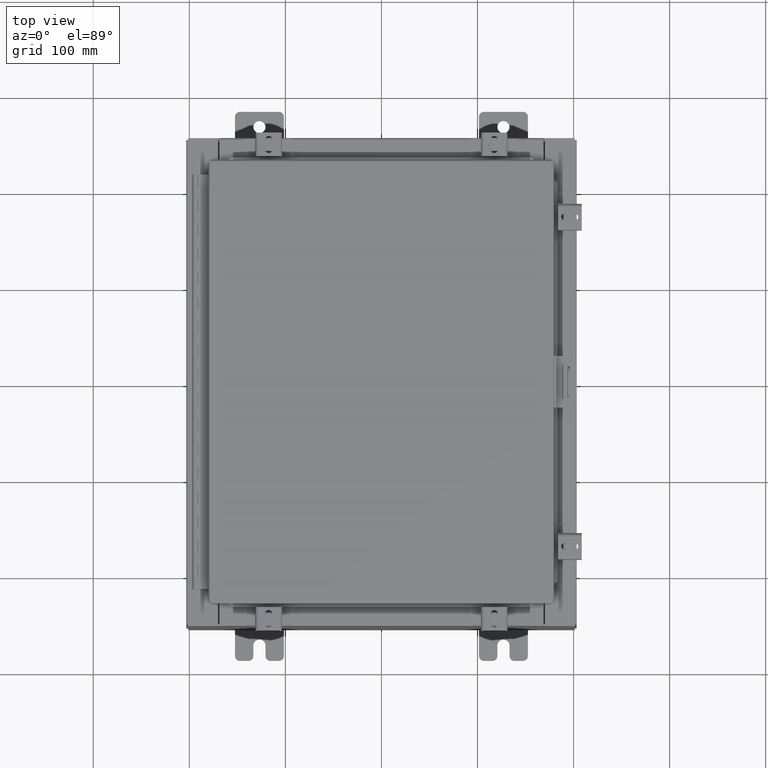
[diagram: clean part render]
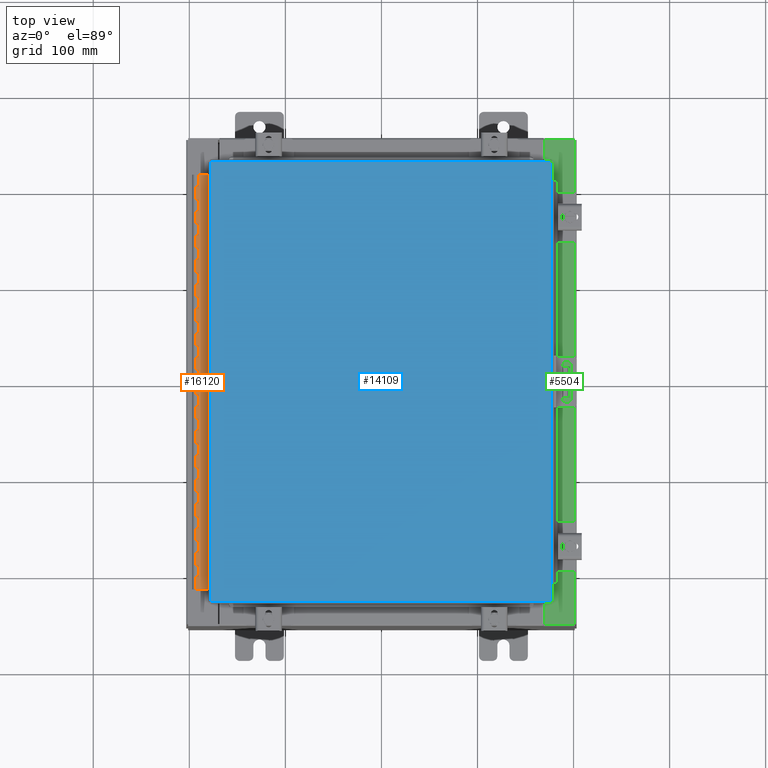
[diagram: same view with three faces highlighted in distinct colors, each labeled with its STEP entity id]
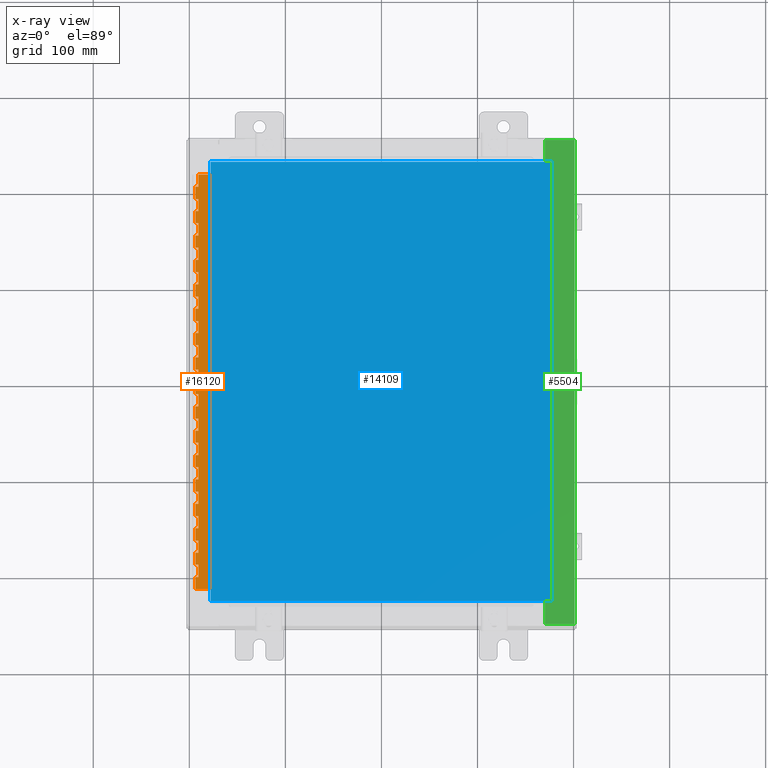
[diagram: x-ray of the same camera — body ghosted, the three highlighted faces saturated]
A machine part, top view with three faces highlighted in distinct colors.
The next image is the same camera in x-ray (body ghosted, the three faces saturated) — at least one of them is partly hidden behind the body in this view.
Their STEP definitions:

[orange] entity #16120 — the highlighted planar face has unit normal (-0, -0, 1).
#17 = CARTESIAN_POINT ( 'NONE',  ( -0.6869999999999978300, 0.6754999999999996600, -7.000000000000000000 ) ) ;
#80 = CARTESIAN_POINT ( 'NONE',  ( -0.6869999999999978300, 0.6754999999999996600, -1.000000000000000000 ) ) ;
#110 = LINE ( 'NONE', #10986, #10803 ) ;
#171 = VECTOR ( 'NONE', #2619, 39.37007874015748100 ) ;
#223 = EDGE_CURVE ( 'NONE', #17770, #22637, #7038, .T. ) ;
#247 = DIRECTION ( 'NONE',  ( -3.389037039080723100E-015, -1.000000000000000000, 0.0000000000000000000 ) ) ;
#256 = LINE ( 'NONE', #8292, #18395 ) ;
#266 = VERTEX_POINT ( 'NONE', #6761 ) ;
#322 = VERTEX_POINT ( 'NONE', #80 ) ;
#326 = CARTESIAN_POINT ( 'NONE',  ( -0.6869999999999998300, 0.07549999999999991400, 0.0000000000000000000 ) ) ;
#331 = DIRECTION ( 'NONE',  ( 0.0000000000000000000, 0.0000000000000000000, 1.000000000000000000 ) ) ;
#352 = VERTEX_POINT ( 'NONE', #2568 ) ;
#487 = DIRECTION ( 'NONE',  ( 0.0000000000000000000, 0.0000000000000000000, 1.000000000000000000 ) ) ;
#522 = CARTESIAN_POINT ( 'NONE',  ( -0.6869999999999982800, 0.5504999999999997700, -10.50000000000000000 ) ) ;
#536 = VECTOR ( 'NONE', #26798, 39.37007874015748100 ) ;
#571 = LINE ( 'NONE', #23505, #5908 ) ;
#589 = DIRECTION ( 'NONE',  ( -3.389037039080723100E-015, -1.000000000000000000, 0.0000000000000000000 ) ) ;
#846 = VERTEX_POINT ( 'NONE', #15884 ) ;
#887 = VECTOR ( 'NONE', #27581, 39.37007874015748100 ) ;
#914 = LINE ( 'NONE', #24167, #6983 ) ;
#973 = VECTOR ( 'NONE', #4366, 39.37007874015748100 ) ;
#985 = VERTEX_POINT ( 'NONE', #23139 ) ;
#1073 = LINE ( 'NONE', #4850, #18511 ) ;
#1079 = CARTESIAN_POINT ( 'NONE',  ( -0.6869999999999973900, 0.8004999999999995500, -11.00000000000000000 ) ) ;
#1138 = CARTESIAN_POINT ( 'NONE',  ( -0.6869999999999982800, 0.5504999999999997700, -16.00000000000000000 ) ) ;
#1148 = CARTESIAN_POINT ( 'NONE',  ( -0.6869999999999982800, 0.5504999999999997700, -14.49999999999999800 ) ) ;
#1169 = ORIENTED_EDGE ( 'NONE', *, *, #14218, .T. ) ;
#1210 = CARTESIAN_POINT ( 'NONE',  ( -0.6869999999999982800, 0.5504999999999997700, -8.500000000000000000 ) ) ;
#1231 = CARTESIAN_POINT ( 'NONE',  ( -0.6869999999999982800, 0.5504999999999997700, -8.500000000000000000 ) ) ;
#1256 = VECTOR ( 'NONE', #6228, 39.37007874015748100 ) ;
#1289 = CARTESIAN_POINT ( 'NONE',  ( -0.6869999999999973900, 0.8004999999999995500, -11.50000000000000000 ) ) ;
#1292 = ORIENTED_EDGE ( 'NONE', *, *, #7272, .F. ) ;
#1295 = CARTESIAN_POINT ( 'NONE',  ( -0.6869999999999973900, 0.8004999999999995500, -2.500000000000000000 ) ) ;
#1490 = LINE ( 'NONE', #11937, #24985 ) ;
#1515 = EDGE_CURVE ( 'NONE', #10337, #6301, #7328, .T. ) ;
#1590 = CARTESIAN_POINT ( 'NONE',  ( -0.6869999999999982800, 0.5504999999999997700, -8.000000000000000000 ) ) ;
#1693 = CARTESIAN_POINT ( 'NONE',  ( -0.6869999999999982800, 0.5504999999999997700, -3.500000000000000000 ) ) ;
#1696 = CARTESIAN_POINT ( 'NONE',  ( -0.6869999999999978300, 0.6754999999999996600, -14.99999999999999800 ) ) ;
#1751 = ORIENTED_EDGE ( 'NONE', *, *, #12906, .F. ) ;
#1775 = EDGE_CURVE ( 'NONE', #13783, #15604, #19044, .T. ) ;
#1781 = VERTEX_POINT ( 'NONE', #326 ) ;
#1784 = EDGE_CURVE ( 'NONE', #846, #16103, #12280, .T. ) ;
#1789 = VECTOR ( 'NONE', #25140, 39.37007874015748100 ) ;
#1903 = CARTESIAN_POINT ( 'NONE',  ( -0.6869999999999973900, 0.8004999999999995500, -7.499999999999999100 ) ) ;
#1945 = DIRECTION ( 'NONE',  ( 0.0000000000000000000, -0.0000000000000000000, -1.000000000000000000 ) ) ;
#1966 = DIRECTION ( 'NONE',  ( 3.389037039080723100E-015, 1.000000000000000000, -0.0000000000000000000 ) ) ;
#2021 = ORIENTED_EDGE ( 'NONE', *, *, #23915, .F. ) ;
#2032 = CARTESIAN_POINT ( 'NONE',  ( -0.6869999999999978300, 0.6754999999999996600, -3.500000000000000000 ) ) ;
#2041 = CARTESIAN_POINT ( 'NONE',  ( -0.6869999999999982800, 0.5504999999999997700, -2.999999999999999600 ) ) ;
#2094 = VERTEX_POINT ( 'NONE', #24160 ) ;
#2125 = LINE ( 'NONE', #1295, #25614 ) ;
#2176 = VECTOR ( 'NONE', #4660, 39.37007874015748100 ) ;
#2288 = DIRECTION ( 'NONE',  ( -3.389037039080723100E-015, -1.000000000000000000, 0.0000000000000000000 ) ) ;
#2477 = CARTESIAN_POINT ( 'NONE',  ( -0.6869999999999982800, 0.5504999999999997700, -11.99999999999999800 ) ) ;
#2482 = EDGE_CURVE ( 'NONE', #28964, #27370, #14035, .T. ) ;
#2490 = CARTESIAN_POINT ( 'NONE',  ( -0.6869999999999978300, 0.6754999999999996600, -10.50000000000000000 ) ) ;
#2568 = CARTESIAN_POINT ( 'NONE',  ( -0.6869999999999982800, 0.5504999999999997700, -0.5000000000000000000 ) ) ;
#2612 = EDGE_CURVE ( 'NONE', #17644, #27948, #16505, .T. ) ;
#2614 = ORIENTED_EDGE ( 'NONE', *, *, #17373, .T. ) ;
#2619 = DIRECTION ( 'NONE',  ( 3.369016658928398200E-015, 1.000000000000000000, 0.0000000000000000000 ) ) ;
#2705 = LINE ( 'NONE', #28507, #12666 ) ;
#2739 = EDGE_CURVE ( 'NONE', #16152, #266, #14065, .T. ) ;
#2814 = DIRECTION ( 'NONE',  ( 0.0000000000000000000, -0.0000000000000000000, -1.000000000000000000 ) ) ;
#2887 = VECTOR ( 'NONE', #10819, 39.37007874015748100 ) ;
#2913 = CARTESIAN_POINT ( 'NONE',  ( -0.6869999999999973900, 0.8004999999999995500, -2.999999999999999600 ) ) ;
#2935 = LINE ( 'NONE', #20892, #25695 ) ;
#2952 = DIRECTION ( 'NONE',  ( 0.0000000000000000000, 0.0000000000000000000, 1.000000000000000000 ) ) ;
#3212 = CARTESIAN_POINT ( 'NONE',  ( -0.6869999999999978300, 0.6754999999999996600, -14.49999999999999800 ) ) ;
#3347 = EDGE_CURVE ( 'NONE', #20771, #21967, #21849, .T. ) ;
#3408 = ORIENTED_EDGE ( 'NONE', *, *, #2612, .T. ) ;
#3441 = CARTESIAN_POINT ( 'NONE',  ( -0.6869999999999982800, 0.5504999999999997700, -14.99999999999999800 ) ) ;
#3503 = CARTESIAN_POINT ( 'NONE',  ( -0.6869999999999982800, 0.5504999999999997700, -13.50000000000000000 ) ) ;
#3504 = DIRECTION ( 'NONE',  ( -3.389037039080723100E-015, -1.000000000000000000, 0.0000000000000000000 ) ) ;
#3768 = VECTOR ( 'NONE', #24550, 39.37007874015748100 ) ;
#3817 = VECTOR ( 'NONE', #7309, 39.37007874015748100 ) ;
#3869 = DIRECTION ( 'NONE',  ( 3.389037039080723100E-015, 1.000000000000000000, -0.0000000000000000000 ) ) ;
#3928 = VECTOR ( 'NONE', #10734, 39.37007874015748100 ) ;
#4003 = ORIENTED_EDGE ( 'NONE', *, *, #18703, .F. ) ;
#4007 = EDGE_CURVE ( 'NONE', #16152, #5953, #6147, .T. ) ;
#4082 = CARTESIAN_POINT ( 'NONE',  ( -0.6869999999999982800, 0.5504999999999997700, -5.000000000000000000 ) ) ;
#4148 = VECTOR ( 'NONE', #331, 39.37007874015748100 ) ;
#4241 = CARTESIAN_POINT ( 'NONE',  ( -0.6869999999999982800, 0.5504999999999997700, -11.50000000000000000 ) ) ;
#4328 = LINE ( 'NONE', #1903, #8970 ) ;
#4360 = ORIENTED_EDGE ( 'NONE', *, *, #24891, .T. ) ;
#4366 = DIRECTION ( 'NONE',  ( 3.389037039080723100E-015, 1.000000000000000000, -0.0000000000000000000 ) ) ;
#4392 = ORIENTED_EDGE ( 'NONE', *, *, #20067, .F. ) ;
#4481 = ORIENTED_EDGE ( 'NONE', *, *, #21491, .F. ) ;
#4504 = VECTOR ( 'NONE', #6855, 39.37007874015748100 ) ;
#4506 = CARTESIAN_POINT ( 'NONE',  ( -0.6869999999999982800, 0.5504999999999997700, -6.000000000000000900 ) ) ;
#4547 = ORIENTED_EDGE ( 'NONE', *, *, #13605, .F. ) ;
#4586 = DIRECTION ( 'NONE',  ( 0.0000000000000000000, -0.0000000000000000000, -1.000000000000000000 ) ) ;
#4626 = CARTESIAN_POINT ( 'NONE',  ( -0.6869999999999978300, 0.6754999999999996600, -17.00000000000000000 ) ) ;
#4631 = ORIENTED_EDGE ( 'NONE', *, *, #21997, .F. ) ;
#4644 = LINE ( 'NONE', #8452, #3928 ) ;
#4656 = CARTESIAN_POINT ( 'NONE',  ( -0.6869999999999973900, 0.8004999999999995500, -14.99999999999999800 ) ) ;
#4660 = DIRECTION ( 'NONE',  ( 0.0000000000000000000, -0.0000000000000000000, -1.000000000000000000 ) ) ;
#4728 = VERTEX_POINT ( 'NONE', #3503 ) ;
#4751 = VERTEX_POINT ( 'NONE', #19521 ) ;
#4850 = CARTESIAN_POINT ( 'NONE',  ( -0.6869999999999973900, 0.8004999999999995500, -11.99999999999999800 ) ) ;
#4909 = EDGE_CURVE ( 'NONE', #14573, #7971, #4328, .T. ) ;
#5118 = ORIENTED_EDGE ( 'NONE', *, *, #21658, .F. ) ;
#5229 = CARTESIAN_POINT ( 'NONE',  ( -0.6869999999999978300, 0.6754999999999996600, -17.00000000000000000 ) ) ;
#5366 = LINE ( 'NONE', #18098, #16767 ) ;
#5386 = LINE ( 'NONE', #1231, #10036 ) ;
#5490 = CARTESIAN_POINT ( 'NONE',  ( -0.6869999999999973900, 0.8004999999999995500, -9.500000000000000000 ) ) ;
#5650 = ORIENTED_EDGE ( 'NONE', *, *, #29156, .F. ) ;
#5653 = EDGE_CURVE ( 'NONE', #15190, #8715, #14621, .T. ) ;
#5659 = VECTOR ( 'NONE', #3504, 39.37007874015748100 ) ;
#5667 = VERTEX_POINT ( 'NONE', #27542 ) ;
#5684 = ORIENTED_EDGE ( 'NONE', *, *, #14749, .F. ) ;
#5770 = CARTESIAN_POINT ( 'NONE',  ( -0.6869999999999973900, 0.8004999999999995500, -14.00000000000000000 ) ) ;
#5794 = ORIENTED_EDGE ( 'NONE', *, *, #27712, .T. ) ;
#5875 = DIRECTION ( 'NONE',  ( -3.389037039080723100E-015, -1.000000000000000000, 0.0000000000000000000 ) ) ;
#5908 = VECTOR ( 'NONE', #9893, 39.37007874015748100 ) ;
#5953 = VERTEX_POINT ( 'NONE', #10329 ) ;
#6022 = LINE ( 'NONE', #1289, #6744 ) ;
#6086 = CARTESIAN_POINT ( 'NONE',  ( -0.6869999999999982800, 0.5504999999999997700, -12.49999999999999800 ) ) ;
#6111 = VERTEX_POINT ( 'NONE', #29029 ) ;
#6147 = LINE ( 'NONE', #17237, #12196 ) ;
#6228 = DIRECTION ( 'NONE',  ( 0.0000000000000000000, -0.0000000000000000000, -1.000000000000000000 ) ) ;
#6261 = DIRECTION ( 'NONE',  ( 0.0000000000000000000, -0.0000000000000000000, -1.000000000000000000 ) ) ;
#6292 = LINE ( 'NONE', #25092, #11627 ) ;
#6301 = VERTEX_POINT ( 'NONE', #18242 ) ;
#6398 = LINE ( 'NONE', #4626, #23827 ) ;
#6452 = ORIENTED_EDGE ( 'NONE', *, *, #4909, .F. ) ;
#6471 = EDGE_CURVE ( 'NONE', #20771, #6301, #16041, .T. ) ;
#6595 = ORIENTED_EDGE ( 'NONE', *, *, #8394, .F. ) ;
#6674 = CARTESIAN_POINT ( 'NONE',  ( -0.6869999999999982800, 0.5504999999999997700, -12.99999999999999800 ) ) ;
#6676 = EDGE_CURVE ( 'NONE', #11946, #18956, #5386, .T. ) ;
#6691 = CARTESIAN_POINT ( 'NONE',  ( -0.6869999999999982800, 0.5504999999999997700, -9.500000000000000000 ) ) ;
#6744 = VECTOR ( 'NONE', #17208, 39.37007874015748100 ) ;
#6761 = CARTESIAN_POINT ( 'NONE',  ( -0.6869999999999978300, 0.6754999999999996600, -10.00000000000000000 ) ) ;
#6766 = LINE ( 'NONE', #2913, #18862 ) ;
#6855 = DIRECTION ( 'NONE',  ( 3.389037039080723100E-015, 1.000000000000000000, -0.0000000000000000000 ) ) ;
#6983 = VECTOR ( 'NONE', #12854, 39.37007874015748100 ) ;
#6987 = DIRECTION ( 'NONE',  ( 1.000000000000000000, -3.369016658928398200E-015, 0.0000000000000000000 ) ) ;
#7038 = LINE ( 'NONE', #17979, #973 ) ;
#7221 = CARTESIAN_POINT ( 'NONE',  ( -0.6869999999999978300, 0.6754999999999996600, -4.500000000000000000 ) ) ;
#7230 = EDGE_CURVE ( 'NONE', #18956, #6111, #13912, .T. ) ;
#7272 = EDGE_CURVE ( 'NONE', #26643, #11282, #1073, .T. ) ;
#7309 = DIRECTION ( 'NONE',  ( 3.389037039080723100E-015, 1.000000000000000000, -0.0000000000000000000 ) ) ;
#7320 = DIRECTION ( 'NONE',  ( 0.0000000000000000000, 0.0000000000000000000, 1.000000000000000000 ) ) ;
#7328 = LINE ( 'NONE', #29100, #536 ) ;
#7335 = LINE ( 'NONE', #28911, #1256 ) ;
#7358 = VECTOR ( 'NONE', #2814, 39.37007874015748100 ) ;
#7404 = DIRECTION ( 'NONE',  ( 3.389037039080723100E-015, 1.000000000000000000, -0.0000000000000000000 ) ) ;
#7422 = CARTESIAN_POINT ( 'NONE',  ( -0.6869999999999978300, 0.6754999999999996600, -17.00000000000000000 ) ) ;
#7470 = LINE ( 'NONE', #5770, #24157 ) ;
#7471 = CARTESIAN_POINT ( 'NONE',  ( -0.6869999999999973900, 0.8004999999999995500, -3.500000000000000000 ) ) ;
#7709 = VERTEX_POINT ( 'NONE', #13106 ) ;
#7749 = DIRECTION ( 'NONE',  ( 0.0000000000000000000, 0.0000000000000000000, 1.000000000000000000 ) ) ;
#7846 = EDGE_CURVE ( 'NONE', #11541, #18933, #6398, .T. ) ;
#7949 = EDGE_CURVE ( 'NONE', #25146, #12086, #9618, .T. ) ;
#7971 = VERTEX_POINT ( 'NONE', #11983 ) ;
#7988 = VECTOR ( 'NONE', #14236, 39.37007874015748100 ) ;
#8019 = VECTOR ( 'NONE', #26826, 39.37007874015748100 ) ;
#8075 = VERTEX_POINT ( 'NONE', #3212 ) ;
#8079 = DIRECTION ( 'NONE',  ( 3.389037039080723100E-015, 1.000000000000000000, -0.0000000000000000000 ) ) ;
#8093 = CARTESIAN_POINT ( 'NONE',  ( -0.6869999999999982800, 0.5504999999999997700, -10.00000000000000000 ) ) ;
#8227 = CARTESIAN_POINT ( 'NONE',  ( -0.6869999999999978300, 0.6754999999999996600, -17.00000000000000000 ) ) ;
#8272 = LINE ( 'NONE', #9456, #18925 ) ;
#8292 = CARTESIAN_POINT ( 'NONE',  ( -0.6869999999999982800, 0.5504999999999997700, -7.499999999999999100 ) ) ;
#8308 = ORIENTED_EDGE ( 'NONE', *, *, #5653, .F. ) ;
#8372 = ORIENTED_EDGE ( 'NONE', *, *, #7846, .T. ) ;
#8394 = EDGE_CURVE ( 'NONE', #13635, #24324, #28428, .T. ) ;
#8445 = ORIENTED_EDGE ( 'NONE', *, *, #10985, .F. ) ;
#8452 = CARTESIAN_POINT ( 'NONE',  ( -0.6869999999999978300, 0.6754999999999996600, -17.00000000000000000 ) ) ;
#8511 = ORIENTED_EDGE ( 'NONE', *, *, #19423, .T. ) ;
#8516 = DIRECTION ( 'NONE',  ( 3.389037039080723100E-015, 1.000000000000000000, -0.0000000000000000000 ) ) ;
#8529 = CARTESIAN_POINT ( 'NONE',  ( -0.6869999999999978300, 0.6754999999999996600, -17.00000000000000000 ) ) ;
#8573 = VECTOR ( 'NONE', #13836, 39.37007874015748100 ) ;
#8578 = VECTOR ( 'NONE', #21152, 39.37007874015748100 ) ;
#8712 = ORIENTED_EDGE ( 'NONE', *, *, #1784, .T. ) ;
#8715 = VERTEX_POINT ( 'NONE', #26008 ) ;
#8729 = AXIS2_PLACEMENT_3D ( 'NONE', #20595, #6987, #22890 ) ;
#8880 = ORIENTED_EDGE ( 'NONE', *, *, #16983, .F. ) ;
#8888 = DIRECTION ( 'NONE',  ( 0.0000000000000000000, 0.0000000000000000000, 1.000000000000000000 ) ) ;
#8970 = VECTOR ( 'NONE', #24581, 39.37007874015748100 ) ;
#9140 = LINE ( 'NONE', #17779, #3768 ) ;
#9189 = PLANE ( 'NONE',  #8729 ) ;
#9195 = DIRECTION ( 'NONE',  ( 0.0000000000000000000, -0.0000000000000000000, -1.000000000000000000 ) ) ;
#9226 = EDGE_CURVE ( 'NONE', #22053, #15212, #28027, .T. ) ;
#9399 = EDGE_CURVE ( 'NONE', #7971, #17770, #256, .T. ) ;
#9456 = CARTESIAN_POINT ( 'NONE',  ( -0.6869999999999973900, 0.8004999999999995500, -14.49999999999999800 ) ) ;
#9480 = LINE ( 'NONE', #27355, #26891 ) ;
#9598 = LINE ( 'NONE', #13780, #27001 ) ;
#9618 = LINE ( 'NONE', #7422, #27728 ) ;
#9649 = LINE ( 'NONE', #28382, #15691 ) ;
#9797 = ORIENTED_EDGE ( 'NONE', *, *, #18851, .T. ) ;
#9862 = VECTOR ( 'NONE', #20568, 39.37007874015748100 ) ;
#9893 = DIRECTION ( 'NONE',  ( 0.0000000000000000000, -0.0000000000000000000, -1.000000000000000000 ) ) ;
#10014 = VECTOR ( 'NONE', #247, 39.37007874015748100 ) ;
#10036 = VECTOR ( 'NONE', #14971, 39.37007874015748100 ) ;
#10095 = CARTESIAN_POINT ( 'NONE',  ( -0.6869999999999978300, 0.6754999999999996600, -8.000000000000000000 ) ) ;
#10145 = DIRECTION ( 'NONE',  ( 0.0000000000000000000, 0.0000000000000000000, 1.000000000000000000 ) ) ;
#10329 = CARTESIAN_POINT ( 'NONE',  ( -0.6869999999999982800, 0.5504999999999997700, -10.50000000000000000 ) ) ;
#10337 = VERTEX_POINT ( 'NONE', #13445 ) ;
#10497 = DIRECTION ( 'NONE',  ( 0.0000000000000000000, 0.0000000000000000000, 1.000000000000000000 ) ) ;
#10546 = VECTOR ( 'NONE', #6261, 39.37007874015748100 ) ;
#10600 = CARTESIAN_POINT ( 'NONE',  ( -0.6869999999999973900, 0.8004999999999995500, -1.000000000000000000 ) ) ;
#10717 = CARTESIAN_POINT ( 'NONE',  ( -0.6869999999999978300, 0.6754999999999996600, -12.49999999999999800 ) ) ;
#10734 = DIRECTION ( 'NONE',  ( 0.0000000000000000000, 0.0000000000000000000, 1.000000000000000000 ) ) ;
#10803 = VECTOR ( 'NONE', #13272, 39.37007874015748100 ) ;
#10810 = ORIENTED_EDGE ( 'NONE', *, *, #4007, .F. ) ;
#10819 = DIRECTION ( 'NONE',  ( 0.0000000000000000000, -0.0000000000000000000, -1.000000000000000000 ) ) ;
#10864 = LINE ( 'NONE', #11417, #21543 ) ;
#10961 = ORIENTED_EDGE ( 'NONE', *, *, #26793, .F. ) ;
#10985 = EDGE_CURVE ( 'NONE', #5667, #11946, #10864, .T. ) ;
#10986 = CARTESIAN_POINT ( 'NONE',  ( -0.6869999999999982800, 0.5504999999999997700, -5.500000000000000000 ) ) ;
#10998 = VECTOR ( 'NONE', #27064, 39.37007874015748100 ) ;
#11087 = VECTOR ( 'NONE', #10497, 39.37007874015748100 ) ;
#11131 = CARTESIAN_POINT ( 'NONE',  ( -0.6869999999999982800, 0.5504999999999997700, -1.499999999999999800 ) ) ;
#11154 = CARTESIAN_POINT ( 'NONE',  ( -0.6869999999999978300, 0.6754999999999996600, -2.000000000000000000 ) ) ;
#11282 = VERTEX_POINT ( 'NONE', #21659 ) ;
#11417 = CARTESIAN_POINT ( 'NONE',  ( -0.6869999999999973900, 0.8004999999999995500, -8.500000000000000000 ) ) ;
#11445 = EDGE_CURVE ( 'NONE', #24039, #22903, #22206, .T. ) ;
#11447 = VECTOR ( 'NONE', #2952, 39.37007874015748100 ) ;
#11449 = CARTESIAN_POINT ( 'NONE',  ( -0.6869999999999982800, 0.5504999999999997700, -0.5000000000000000000 ) ) ;
#11452 = CARTESIAN_POINT ( 'NONE',  ( -0.6869999999999982800, 0.5504999999999997700, -17.00000000000000000 ) ) ;
#11458 = DIRECTION ( 'NONE',  ( 0.0000000000000000000, -0.0000000000000000000, -1.000000000000000000 ) ) ;
#11470 = ORIENTED_EDGE ( 'NONE', *, *, #27520, .F. ) ;
#11477 = DIRECTION ( 'NONE',  ( 3.369016658928398200E-015, 1.000000000000000000, 0.0000000000000000000 ) ) ;
#11498 = VERTEX_POINT ( 'NONE', #17747 ) ;
#11504 = ORIENTED_EDGE ( 'NONE', *, *, #14508, .F. ) ;
#11541 = VERTEX_POINT ( 'NONE', #2032 ) ;
#11583 = DIRECTION ( 'NONE',  ( 3.389037039080723100E-015, 1.000000000000000000, -0.0000000000000000000 ) ) ;
#11585 = ORIENTED_EDGE ( 'NONE', *, *, #14086, .F. ) ;
#11627 = VECTOR ( 'NONE', #11477, 39.37007874015748100 ) ;
#11641 = ORIENTED_EDGE ( 'NONE', *, *, #7949, .T. ) ;
#11901 = CARTESIAN_POINT ( 'NONE',  ( -0.6869999999999982800, 0.5504999999999997700, -2.500000000000000000 ) ) ;
#11937 = CARTESIAN_POINT ( 'NONE',  ( -0.6869999999999973900, 0.8004999999999995500, -15.50000000000000000 ) ) ;
#11946 = VERTEX_POINT ( 'NONE', #1210 ) ;
#11983 = CARTESIAN_POINT ( 'NONE',  ( -0.6869999999999982800, 0.5504999999999997700, -7.499999999999999100 ) ) ;
#12002 = ORIENTED_EDGE ( 'NONE', *, *, #13262, .F. ) ;
#12064 = VECTOR ( 'NONE', #1966, 39.37007874015748100 ) ;
#12086 = VERTEX_POINT ( 'NONE', #1696 ) ;
#12089 = ORIENTED_EDGE ( 'NONE', *, *, #223, .F. ) ;
#12196 = VECTOR ( 'NONE', #12672, 39.37007874015748100 ) ;
#12280 = LINE ( 'NONE', #25285, #171 ) ;
#12415 = LINE ( 'NONE', #24084, #5659 ) ;
#12444 = ORIENTED_EDGE ( 'NONE', *, *, #15601, .F. ) ;
#12463 = EDGE_CURVE ( 'NONE', #14526, #27370, #14691, .T. ) ;
#12608 = DIRECTION ( 'NONE',  ( -3.389037039080723100E-015, -1.000000000000000000, 0.0000000000000000000 ) ) ;
#12639 = CARTESIAN_POINT ( 'NONE',  ( -0.6869999999999982800, 0.5504999999999997700, -5.500000000000000000 ) ) ;
#12666 = VECTOR ( 'NONE', #19462, 39.37007874015748100 ) ;
#12672 = DIRECTION ( 'NONE',  ( -3.389037039080723100E-015, -1.000000000000000000, 0.0000000000000000000 ) ) ;
#12811 = LINE ( 'NONE', #11449, #18123 ) ;
#12835 = CARTESIAN_POINT ( 'NONE',  ( -0.6869999999999978300, 0.6754999999999996600, -5.500000000000000000 ) ) ;
#12854 = DIRECTION ( 'NONE',  ( 0.0000000000000000000, 0.0000000000000000000, 1.000000000000000000 ) ) ;
#12906 = EDGE_CURVE ( 'NONE', #21967, #15761, #24679, .T. ) ;
#12912 = ORIENTED_EDGE ( 'NONE', *, *, #1515, .F. ) ;
#12981 = VECTOR ( 'NONE', #8888, 39.37007874015748100 ) ;
#12993 = DIRECTION ( 'NONE',  ( 3.389037039080723100E-015, 1.000000000000000000, -0.0000000000000000000 ) ) ;
#13071 = ORIENTED_EDGE ( 'NONE', *, *, #26286, .F. ) ;
#13106 = CARTESIAN_POINT ( 'NONE',  ( -0.6869999999999982800, 0.5504999999999997700, -11.50000000000000000 ) ) ;
#13184 = CARTESIAN_POINT ( 'NONE',  ( -0.6869999999999973900, 0.8004999999999995500, -12.99999999999999800 ) ) ;
#13201 = DIRECTION ( 'NONE',  ( -3.389037039080723100E-015, -1.000000000000000000, 0.0000000000000000000 ) ) ;
#13262 = EDGE_CURVE ( 'NONE', #15604, #15190, #110, .T. ) ;
#13272 = DIRECTION ( 'NONE',  ( 0.0000000000000000000, -0.0000000000000000000, -1.000000000000000000 ) ) ;
#13432 = VECTOR ( 'NONE', #24010, 39.37007874015748100 ) ;
#13445 = CARTESIAN_POINT ( 'NONE',  ( -0.6869999999999982800, 0.5504999999999997700, -4.000000000000000000 ) ) ;
#13457 = CARTESIAN_POINT ( 'NONE',  ( -0.6869999999999973900, 0.8004999999999995500, -6.499999999999999100 ) ) ;
#13564 = VECTOR ( 'NONE', #17718, 39.37007874015748100 ) ;
#13605 = EDGE_CURVE ( 'NONE', #24324, #22053, #20363, .T. ) ;
#13635 = VERTEX_POINT ( 'NONE', #21415 ) ;
#13712 = DIRECTION ( 'NONE',  ( -3.389037039080723100E-015, -1.000000000000000000, 0.0000000000000000000 ) ) ;
#13780 = CARTESIAN_POINT ( 'NONE',  ( -0.6869999999999973900, 0.8004999999999995500, -5.000000000000000000 ) ) ;
#13783 = VERTEX_POINT ( 'NONE', #12835 ) ;
#13791 = CARTESIAN_POINT ( 'NONE',  ( -0.6869999999999978300, 0.6754999999999996600, -2.500000000000000000 ) ) ;
#13794 = VECTOR ( 'NONE', #9195, 39.37007874015748100 ) ;
#13836 = DIRECTION ( 'NONE',  ( 3.389037039080723100E-015, 1.000000000000000000, -0.0000000000000000000 ) ) ;
#13863 = ORIENTED_EDGE ( 'NONE', *, *, #9226, .F. ) ;
#13911 = CARTESIAN_POINT ( 'NONE',  ( -0.6869999999999978300, 0.6754999999999996600, -9.500000000000000000 ) ) ;
#13912 = LINE ( 'NONE', #22765, #1789 ) ;
#13959 = VERTEX_POINT ( 'NONE', #17977 ) ;
#14035 = LINE ( 'NONE', #25538, #7988 ) ;
#14065 = LINE ( 'NONE', #24535, #8019 ) ;
#14086 = EDGE_CURVE ( 'NONE', #17841, #29479, #26387, .T. ) ;
#14119 = EDGE_CURVE ( 'NONE', #8075, #21969, #8272, .T. ) ;
#14152 = LINE ( 'NONE', #21744, #13432 ) ;
#14191 = ORIENTED_EDGE ( 'NONE', *, *, #24930, .F. ) ;
#14218 = EDGE_CURVE ( 'NONE', #20226, #6111, #23557, .T. ) ;
#14236 = DIRECTION ( 'NONE',  ( 0.0000000000000000000, 0.0000000000000000000, 1.000000000000000000 ) ) ;
#14454 = CARTESIAN_POINT ( 'NONE',  ( -0.6869999999999982800, 0.5504999999999997700, -6.499999999999999100 ) ) ;
#14508 = EDGE_CURVE ( 'NONE', #24514, #26533, #29243, .T. ) ;
#14526 = VERTEX_POINT ( 'NONE', #24522 ) ;
#14573 = VERTEX_POINT ( 'NONE', #28663 ) ;
#14610 = VERTEX_POINT ( 'NONE', #2041 ) ;
#14621 = LINE ( 'NONE', #25149, #8573 ) ;
#14691 = LINE ( 'NONE', #1079, #26044 ) ;
#14749 = EDGE_CURVE ( 'NONE', #985, #4728, #27423, .T. ) ;
#14774 = DIRECTION ( 'NONE',  ( 0.0000000000000000000, 0.0000000000000000000, 1.000000000000000000 ) ) ;
#14956 = EDGE_CURVE ( 'NONE', #5667, #22637, #9649, .T. ) ;
#14971 = DIRECTION ( 'NONE',  ( 0.0000000000000000000, -0.0000000000000000000, -1.000000000000000000 ) ) ;
#15057 = EDGE_CURVE ( 'NONE', #26533, #13959, #18868, .T. ) ;
#15190 = VERTEX_POINT ( 'NONE', #4506 ) ;
#15212 = VERTEX_POINT ( 'NONE', #17 ) ;
#15471 = ORIENTED_EDGE ( 'NONE', *, *, #17309, .F. ) ;
#15568 = EDGE_CURVE ( 'NONE', #2094, #27259, #7470, .T. ) ;
#15601 = EDGE_CURVE ( 'NONE', #28964, #7709, #6022, .T. ) ;
#15604 = VERTEX_POINT ( 'NONE', #12639 ) ;
#15691 = VECTOR ( 'NONE', #14774, 39.37007874015748100 ) ;
#15761 = VERTEX_POINT ( 'NONE', #4082 ) ;
#15796 = ORIENTED_EDGE ( 'NONE', *, *, #17875, .F. ) ;
#15848 = EDGE_CURVE ( 'NONE', #29150, #352, #12415, .T. ) ;
#15865 = LINE ( 'NONE', #29396, #27224 ) ;
#15884 = CARTESIAN_POINT ( 'NONE',  ( -0.6869999999999998300, 0.07549999999999991400, -17.00000000000000000 ) ) ;
#15900 = LINE ( 'NONE', #16004, #9862 ) ;
#16004 = CARTESIAN_POINT ( 'NONE',  ( -0.6869999999999982800, 0.5504999999999997700, -15.50000000000000000 ) ) ;
#16041 = LINE ( 'NONE', #5229, #8578 ) ;
#16059 = ORIENTED_EDGE ( 'NONE', *, *, #21309, .F. ) ;
#16103 = VERTEX_POINT ( 'NONE', #11452 ) ;
#16120 = ADVANCED_FACE ( 'NONE', ( #28063 ), #9189, .T. ) ;
#16152 = VERTEX_POINT ( 'NONE', #2490 ) ;
#16166 = VECTOR ( 'NONE', #26703, 39.37007874015748100 ) ;
#16172 = CARTESIAN_POINT ( 'NONE',  ( -0.6869999999999973900, 0.8004999999999995500, -13.50000000000000000 ) ) ;
#16505 = LINE ( 'NONE', #28618, #28599 ) ;
#16587 = CARTESIAN_POINT ( 'NONE',  ( -0.6869999999999978300, 0.6754999999999996600, -17.00000000000000000 ) ) ;
#16593 = VECTOR ( 'NONE', #25864, 39.37007874015748100 ) ;
#16661 = CARTESIAN_POINT ( 'NONE',  ( -0.6869999999999982800, 0.5504999999999997700, -4.500000000000000000 ) ) ;
#16767 = VECTOR ( 'NONE', #2288, 39.37007874015748100 ) ;
#16878 = CARTESIAN_POINT ( 'NONE',  ( -0.6869999999999998300, 0.07549999999999991400, -17.00000000000000000 ) ) ;
#16893 = ORIENTED_EDGE ( 'NONE', *, *, #12463, .F. ) ;
#16983 = EDGE_CURVE ( 'NONE', #24155, #23329, #14152, .T. ) ;
#17067 = EDGE_CURVE ( 'NONE', #4751, #322, #29437, .T. ) ;
#17081 = ORIENTED_EDGE ( 'NONE', *, *, #2482, .T. ) ;
#17120 = VECTOR ( 'NONE', #27936, 39.37007874015748100 ) ;
#17208 = DIRECTION ( 'NONE',  ( -3.389037039080723100E-015, -1.000000000000000000, 0.0000000000000000000 ) ) ;
#17237 = CARTESIAN_POINT ( 'NONE',  ( -0.6869999999999973900, 0.8004999999999995500, -10.50000000000000000 ) ) ;
#17309 = EDGE_CURVE ( 'NONE', #1781, #23181, #6292, .T. ) ;
#17327 = ORIENTED_EDGE ( 'NONE', *, *, #15848, .F. ) ;
#17373 = EDGE_CURVE ( 'NONE', #24155, #322, #27635, .T. ) ;
#17456 = EDGE_CURVE ( 'NONE', #5953, #14526, #19448, .T. ) ;
#17510 = EDGE_CURVE ( 'NONE', #17858, #10337, #571, .T. ) ;
#17547 = ORIENTED_EDGE ( 'NONE', *, *, #22189, .F. ) ;
#17552 = EDGE_CURVE ( 'NONE', #20226, #17841, #22641, .T. ) ;
#17576 = CARTESIAN_POINT ( 'NONE',  ( -0.6869999999999978300, 0.6754999999999996600, -15.50000000000000000 ) ) ;
#17644 = VERTEX_POINT ( 'NONE', #26261 ) ;
#17718 = DIRECTION ( 'NONE',  ( 0.0000000000000000000, 0.0000000000000000000, 1.000000000000000000 ) ) ;
#17729 = EDGE_CURVE ( 'NONE', #23811, #11282, #914, .T. ) ;
#17747 = CARTESIAN_POINT ( 'NONE',  ( -0.6869999999999982800, 0.5504999999999997700, -16.50000000000000000 ) ) ;
#17751 = CARTESIAN_POINT ( 'NONE',  ( -0.6869999999999973900, 0.8004999999999995500, -12.49999999999999800 ) ) ;
#17770 = VERTEX_POINT ( 'NONE', #1590 ) ;
#17779 = CARTESIAN_POINT ( 'NONE',  ( -0.6869999999999973900, 0.8004999999999995500, -10.00000000000000000 ) ) ;
#17841 = VERTEX_POINT ( 'NONE', #6691 ) ;
#17858 = VERTEX_POINT ( 'NONE', #1693 ) ;
#17875 = EDGE_CURVE ( 'NONE', #4728, #2094, #9480, .T. ) ;
#17927 = ORIENTED_EDGE ( 'NONE', *, *, #9399, .F. ) ;
#17977 = CARTESIAN_POINT ( 'NONE',  ( -0.6869999999999978300, 0.6754999999999996600, -12.99999999999999800 ) ) ;
#17979 = CARTESIAN_POINT ( 'NONE',  ( -0.6869999999999973900, 0.8004999999999995500, -8.000000000000000000 ) ) ;
#18036 = DIRECTION ( 'NONE',  ( 0.0000000000000000000, 0.0000000000000000000, 1.000000000000000000 ) ) ;
#18098 = CARTESIAN_POINT ( 'NONE',  ( -0.6869999999999973900, 0.8004999999999995500, -16.50000000000000000 ) ) ;
#18123 = VECTOR ( 'NONE', #4586, 39.37007874015748100 ) ;
#18215 = CARTESIAN_POINT ( 'NONE',  ( -0.6869999999999978300, 0.6754999999999996600, -11.00000000000000000 ) ) ;
#18231 = DIRECTION ( 'NONE',  ( 0.0000000000000000000, 0.0000000000000000000, 1.000000000000000000 ) ) ;
#18242 = CARTESIAN_POINT ( 'NONE',  ( -0.6869999999999978300, 0.6754999999999996600, -4.000000000000000000 ) ) ;
#18290 = VERTEX_POINT ( 'NONE', #21882 ) ;
#18336 = EDGE_CURVE ( 'NONE', #23329, #28365, #28692, .T. ) ;
#18378 = EDGE_CURVE ( 'NONE', #29479, #266, #9140, .T. ) ;
#18395 = VECTOR ( 'NONE', #21903, 39.37007874015748100 ) ;
#18419 = CARTESIAN_POINT ( 'NONE',  ( -0.6869999999999982800, 0.5504999999999997700, -6.499999999999999100 ) ) ;
#18511 = VECTOR ( 'NONE', #23071, 39.37007874015748100 ) ;
#18537 = CARTESIAN_POINT ( 'NONE',  ( -0.6869999999999982800, 0.5504999999999997700, -9.000000000000000000 ) ) ;
#18615 = VERTEX_POINT ( 'NONE', #25327 ) ;
#18631 = CARTESIAN_POINT ( 'NONE',  ( -0.6869999999999973900, 0.8004999999999995500, -7.000000000000000000 ) ) ;
#18636 = VECTOR ( 'NONE', #18946, 39.37007874015748100 ) ;
#18703 = EDGE_CURVE ( 'NONE', #25489, #14610, #7335, .T. ) ;
#18821 = ORIENTED_EDGE ( 'NONE', *, *, #27844, .F. ) ;
#18829 = LINE ( 'NONE', #29232, #12064 ) ;
#18848 = ORIENTED_EDGE ( 'NONE', *, *, #2739, .T. ) ;
#18851 = EDGE_CURVE ( 'NONE', #8075, #27259, #15865, .T. ) ;
#18862 = VECTOR ( 'NONE', #7404, 39.37007874015748100 ) ;
#18868 = LINE ( 'NONE', #13184, #24909 ) ;
#18925 = VECTOR ( 'NONE', #23068, 39.37007874015748100 ) ;
#18933 = VERTEX_POINT ( 'NONE', #22929 ) ;
#18946 = DIRECTION ( 'NONE',  ( 0.0000000000000000000, -0.0000000000000000000, -1.000000000000000000 ) ) ;
#18956 = VERTEX_POINT ( 'NONE', #18537 ) ;
#18996 = ORIENTED_EDGE ( 'NONE', *, *, #3347, .F. ) ;
#19020 = LINE ( 'NONE', #22493, #12981 ) ;
#19044 = LINE ( 'NONE', #20720, #887 ) ;
#19118 = LINE ( 'NONE', #25065, #13794 ) ;
#19127 = ORIENTED_EDGE ( 'NONE', *, *, #21664, .F. ) ;
#19367 = CARTESIAN_POINT ( 'NONE',  ( -0.6869999999999982800, 0.5504999999999997700, -4.500000000000000000 ) ) ;
#19423 = EDGE_CURVE ( 'NONE', #985, #13959, #19020, .T. ) ;
#19448 = LINE ( 'NONE', #522, #7358 ) ;
#19462 = DIRECTION ( 'NONE',  ( 0.0000000000000000000, -0.0000000000000000000, -1.000000000000000000 ) ) ;
#19521 = CARTESIAN_POINT ( 'NONE',  ( -0.6869999999999982800, 0.5504999999999997700, -1.000000000000000000 ) ) ;
#19530 = EDGE_CURVE ( 'NONE', #352, #4751, #12811, .T. ) ;
#19603 = LINE ( 'NONE', #24478, #13564 ) ;
#19788 = ORIENTED_EDGE ( 'NONE', *, *, #6676, .F. ) ;
#19867 = CARTESIAN_POINT ( 'NONE',  ( -0.6869999999999982800, 0.5504999999999997700, -2.000000000000000000 ) ) ;
#19869 = CARTESIAN_POINT ( 'NONE',  ( -0.6869999999999982800, 0.5504999999999997700, -1.499999999999999800 ) ) ;
#20024 = CARTESIAN_POINT ( 'NONE',  ( -0.6869999999999978300, 0.6754999999999996600, -14.00000000000000000 ) ) ;
#20067 = EDGE_CURVE ( 'NONE', #25622, #27948, #18829, .T. ) ;
#20226 = VERTEX_POINT ( 'NONE', #13911 ) ;
#20363 = LINE ( 'NONE', #14454, #25697 ) ;
#20400 = EDGE_CURVE ( 'NONE', #846, #1781, #22371, .T. ) ;
#20568 = DIRECTION ( 'NONE',  ( 0.0000000000000000000, -0.0000000000000000000, -1.000000000000000000 ) ) ;
#20595 = CARTESIAN_POINT ( 'NONE',  ( -0.6870000000000022800, -0.6245000000000003900, -17.00000000000000000 ) ) ;
#20671 = CARTESIAN_POINT ( 'NONE',  ( -0.6869999999999982800, 0.5504999999999997700, -9.500000000000000000 ) ) ;
#20720 = CARTESIAN_POINT ( 'NONE',  ( -0.6869999999999973900, 0.8004999999999995500, -5.500000000000000000 ) ) ;
#20726 = CARTESIAN_POINT ( 'NONE',  ( -0.6869999999999978300, 0.6754999999999996600, -17.00000000000000000 ) ) ;
#20771 = VERTEX_POINT ( 'NONE', #7221 ) ;
#20887 = LINE ( 'NONE', #24440, #21615 ) ;
#20892 = CARTESIAN_POINT ( 'NONE',  ( -0.6869999999999978300, 0.6754999999999996600, -17.00000000000000000 ) ) ;
#20928 = ORIENTED_EDGE ( 'NONE', *, *, #15568, .F. ) ;
#21152 = DIRECTION ( 'NONE',  ( 0.0000000000000000000, 0.0000000000000000000, 1.000000000000000000 ) ) ;
#21294 = ORIENTED_EDGE ( 'NONE', *, *, #17729, .T. ) ;
#21309 = EDGE_CURVE ( 'NONE', #21969, #21992, #19118, .T. ) ;
#21310 = DIRECTION ( 'NONE',  ( 0.0000000000000000000, -0.0000000000000000000, -1.000000000000000000 ) ) ;
#21387 = EDGE_LOOP ( 'NONE', ( #25897, #8712, #4631, #18821, #3408, #4392, #5118, #14191, #11641, #19127, #16059, #22077, #9797, #20928, #15796, #5684, #8511, #21916, #11504, #17547, #21294, #1292, #2021, #12444, #17081, #16893, #21420, #10810, #18848, #26978, #11585, #21474, #1169, #28390, #19788, #8445, #25563, #12089, #17927, #6452, #5794, #13863, #4547, #6595, #4360, #8308, #12002, #26907, #26919, #5650, #1751, #18996, #27069, #12912, #21631, #10961, #8372, #11470, #4003, #13071, #28677, #4481, #28095, #8880, #2614, #23853, #26776, #17327, #24809, #15471 ) ) ;
#21415 = CARTESIAN_POINT ( 'NONE',  ( -0.6869999999999978300, 0.6754999999999996600, -6.499999999999999100 ) ) ;
#21420 = ORIENTED_EDGE ( 'NONE', *, *, #17456, .F. ) ;
#21474 = ORIENTED_EDGE ( 'NONE', *, *, #17552, .F. ) ;
#21491 = EDGE_CURVE ( 'NONE', #28365, #22903, #20887, .T. ) ;
#21543 = VECTOR ( 'NONE', #13712, 39.37007874015748100 ) ;
#21588 = DIRECTION ( 'NONE',  ( 3.389037039080723100E-015, 1.000000000000000000, -0.0000000000000000000 ) ) ;
#21615 = VECTOR ( 'NONE', #3869, 39.37007874015748100 ) ;
#21631 = ORIENTED_EDGE ( 'NONE', *, *, #17510, .F. ) ;
#21658 = EDGE_CURVE ( 'NONE', #18615, #25622, #15900, .T. ) ;
#21659 = CARTESIAN_POINT ( 'NONE',  ( -0.6869999999999978300, 0.6754999999999996600, -11.99999999999999800 ) ) ;
#21664 = EDGE_CURVE ( 'NONE', #21992, #12086, #21946, .T. ) ;
#21744 = CARTESIAN_POINT ( 'NONE',  ( -0.6869999999999973900, 0.8004999999999995500, -1.499999999999999800 ) ) ;
#21849 = LINE ( 'NONE', #26220, #27894 ) ;
#21882 = CARTESIAN_POINT ( 'NONE',  ( -0.6869999999999978300, 0.6754999999999996600, -5.000000000000000000 ) ) ;
#21903 = DIRECTION ( 'NONE',  ( 0.0000000000000000000, -0.0000000000000000000, -1.000000000000000000 ) ) ;
#21916 = ORIENTED_EDGE ( 'NONE', *, *, #15057, .F. ) ;
#21946 = LINE ( 'NONE', #4656, #4504 ) ;
#21967 = VERTEX_POINT ( 'NONE', #19367 ) ;
#21969 = VERTEX_POINT ( 'NONE', #1148 ) ;
#21992 = VERTEX_POINT ( 'NONE', #3441 ) ;
#21997 = EDGE_CURVE ( 'NONE', #11498, #16103, #2705, .T. ) ;
#22053 = VERTEX_POINT ( 'NONE', #26401 ) ;
#22077 = ORIENTED_EDGE ( 'NONE', *, *, #14119, .F. ) ;
#22189 = EDGE_CURVE ( 'NONE', #23811, #24514, #26517, .T. ) ;
#22206 = LINE ( 'NONE', #8529, #16166 ) ;
#22232 = CARTESIAN_POINT ( 'NONE',  ( -0.6869999999999978300, 0.6754999999999996600, -11.50000000000000000 ) ) ;
#22371 = LINE ( 'NONE', #16878, #28422 ) ;
#22493 = CARTESIAN_POINT ( 'NONE',  ( -0.6869999999999978300, 0.6754999999999996600, -17.00000000000000000 ) ) ;
#22637 = VERTEX_POINT ( 'NONE', #10095 ) ;
#22641 = LINE ( 'NONE', #5490, #16593 ) ;
#22765 = CARTESIAN_POINT ( 'NONE',  ( -0.6869999999999973900, 0.8004999999999995500, -9.000000000000000000 ) ) ;
#22824 = CARTESIAN_POINT ( 'NONE',  ( -0.6869999999999978300, 0.6754999999999996600, -0.5000000000000000000 ) ) ;
#22890 = DIRECTION ( 'NONE',  ( 3.369016658928398200E-015, 1.000000000000000000, 0.0000000000000000000 ) ) ;
#22903 = VERTEX_POINT ( 'NONE', #11154 ) ;
#22929 = CARTESIAN_POINT ( 'NONE',  ( -0.6869999999999978300, 0.6754999999999996600, -2.999999999999999600 ) ) ;
#23068 = DIRECTION ( 'NONE',  ( -3.389037039080723100E-015, -1.000000000000000000, 0.0000000000000000000 ) ) ;
#23071 = DIRECTION ( 'NONE',  ( 3.389037039080723100E-015, 1.000000000000000000, -0.0000000000000000000 ) ) ;
#23139 = CARTESIAN_POINT ( 'NONE',  ( -0.6869999999999978300, 0.6754999999999996600, -13.50000000000000000 ) ) ;
#23181 = VERTEX_POINT ( 'NONE', #23963 ) ;
#23183 = LINE ( 'NONE', #7471, #17120 ) ;
#23329 = VERTEX_POINT ( 'NONE', #11131 ) ;
#23393 = VECTOR ( 'NONE', #12993, 39.37007874015748100 ) ;
#23505 = CARTESIAN_POINT ( 'NONE',  ( -0.6869999999999982800, 0.5504999999999997700, -3.500000000000000000 ) ) ;
#23557 = LINE ( 'NONE', #16587, #11447 ) ;
#23811 = VERTEX_POINT ( 'NONE', #10717 ) ;
#23827 = VECTOR ( 'NONE', #18231, 39.37007874015748100 ) ;
#23853 = ORIENTED_EDGE ( 'NONE', *, *, #17067, .F. ) ;
#23915 = EDGE_CURVE ( 'NONE', #7709, #26643, #26467, .T. ) ;
#23963 = CARTESIAN_POINT ( 'NONE',  ( -0.6869999999999978300, 0.6754999999999996600, 0.0000000000000000000 ) ) ;
#24010 = DIRECTION ( 'NONE',  ( -3.389037039080723100E-015, -1.000000000000000000, 0.0000000000000000000 ) ) ;
#24039 = VERTEX_POINT ( 'NONE', #13791 ) ;
#24084 = CARTESIAN_POINT ( 'NONE',  ( -0.6869999999999973900, 0.8004999999999995500, -0.5000000000000000000 ) ) ;
#24155 = VERTEX_POINT ( 'NONE', #27789 ) ;
#24157 = VECTOR ( 'NONE', #8079, 39.37007874015748100 ) ;
#24160 = CARTESIAN_POINT ( 'NONE',  ( -0.6869999999999982800, 0.5504999999999997700, -14.00000000000000000 ) ) ;
#24167 = CARTESIAN_POINT ( 'NONE',  ( -0.6869999999999978300, 0.6754999999999996600, -17.00000000000000000 ) ) ;
#24324 = VERTEX_POINT ( 'NONE', #18419 ) ;
#24440 = CARTESIAN_POINT ( 'NONE',  ( -0.6869999999999973900, 0.8004999999999995500, -2.000000000000000000 ) ) ;
#24478 = CARTESIAN_POINT ( 'NONE',  ( -0.6869999999999978300, 0.6754999999999996600, -17.00000000000000000 ) ) ;
#24514 = VERTEX_POINT ( 'NONE', #6086 ) ;
#24522 = CARTESIAN_POINT ( 'NONE',  ( -0.6869999999999982800, 0.5504999999999997700, -11.00000000000000000 ) ) ;
#24535 = CARTESIAN_POINT ( 'NONE',  ( -0.6869999999999978300, 0.6754999999999996600, -17.00000000000000000 ) ) ;
#24550 = DIRECTION ( 'NONE',  ( 3.389037039080723100E-015, 1.000000000000000000, -0.0000000000000000000 ) ) ;
#24581 = DIRECTION ( 'NONE',  ( -3.389037039080723100E-015, -1.000000000000000000, 0.0000000000000000000 ) ) ;
#24679 = LINE ( 'NONE', #16661, #18636 ) ;
#24809 = ORIENTED_EDGE ( 'NONE', *, *, #27101, .T. ) ;
#24891 = EDGE_CURVE ( 'NONE', #13635, #8715, #2935, .T. ) ;
#24909 = VECTOR ( 'NONE', #8516, 39.37007874015748100 ) ;
#24930 = EDGE_CURVE ( 'NONE', #25146, #18615, #1490, .T. ) ;
#24985 = VECTOR ( 'NONE', #589, 39.37007874015748100 ) ;
#25065 = CARTESIAN_POINT ( 'NONE',  ( -0.6869999999999982800, 0.5504999999999997700, -14.49999999999999800 ) ) ;
#25092 = CARTESIAN_POINT ( 'NONE',  ( -0.6870000000000022800, -0.6245000000000003900, 0.0000000000000000000 ) ) ;
#25140 = DIRECTION ( 'NONE',  ( 3.389037039080723100E-015, 1.000000000000000000, -0.0000000000000000000 ) ) ;
#25146 = VERTEX_POINT ( 'NONE', #17576 ) ;
#25149 = CARTESIAN_POINT ( 'NONE',  ( -0.6869999999999973900, 0.8004999999999995500, -6.000000000000000900 ) ) ;
#25285 = CARTESIAN_POINT ( 'NONE',  ( -0.6870000000000022800, -0.6245000000000003900, -17.00000000000000000 ) ) ;
#25327 = CARTESIAN_POINT ( 'NONE',  ( -0.6869999999999982800, 0.5504999999999997700, -15.50000000000000000 ) ) ;
#25356 = CARTESIAN_POINT ( 'NONE',  ( -0.6869999999999978300, 0.6754999999999996600, -16.00000000000000000 ) ) ;
#25489 = VERTEX_POINT ( 'NONE', #11901 ) ;
#25538 = CARTESIAN_POINT ( 'NONE',  ( -0.6869999999999978300, 0.6754999999999996600, -17.00000000000000000 ) ) ;
#25563 = ORIENTED_EDGE ( 'NONE', *, *, #14956, .T. ) ;
#25614 = VECTOR ( 'NONE', #5875, 39.37007874015748100 ) ;
#25622 = VERTEX_POINT ( 'NONE', #1138 ) ;
#25686 = EDGE_CURVE ( 'NONE', #13783, #18290, #29240, .T. ) ;
#25695 = VECTOR ( 'NONE', #487, 39.37007874015748100 ) ;
#25697 = VECTOR ( 'NONE', #21310, 39.37007874015748100 ) ;
#25753 = VECTOR ( 'NONE', #1945, 39.37007874015748100 ) ;
#25805 = VECTOR ( 'NONE', #13201, 39.37007874015748100 ) ;
#25864 = DIRECTION ( 'NONE',  ( -3.389037039080723100E-015, -1.000000000000000000, 0.0000000000000000000 ) ) ;
#25897 = ORIENTED_EDGE ( 'NONE', *, *, #20400, .F. ) ;
#26008 = CARTESIAN_POINT ( 'NONE',  ( -0.6869999999999978300, 0.6754999999999996600, -6.000000000000000900 ) ) ;
#26044 = VECTOR ( 'NONE', #21588, 39.37007874015748100 ) ;
#26220 = CARTESIAN_POINT ( 'NONE',  ( -0.6869999999999973900, 0.8004999999999995500, -4.500000000000000000 ) ) ;
#26261 = CARTESIAN_POINT ( 'NONE',  ( -0.6869999999999978300, 0.6754999999999996600, -16.50000000000000000 ) ) ;
#26286 = EDGE_CURVE ( 'NONE', #24039, #25489, #2125, .T. ) ;
#26387 = LINE ( 'NONE', #20671, #2176 ) ;
#26401 = CARTESIAN_POINT ( 'NONE',  ( -0.6869999999999982800, 0.5504999999999997700, -7.000000000000000000 ) ) ;
#26467 = LINE ( 'NONE', #4241, #25753 ) ;
#26517 = LINE ( 'NONE', #17751, #25805 ) ;
#26533 = VERTEX_POINT ( 'NONE', #6674 ) ;
#26643 = VERTEX_POINT ( 'NONE', #2477 ) ;
#26703 = DIRECTION ( 'NONE',  ( 0.0000000000000000000, 0.0000000000000000000, 1.000000000000000000 ) ) ;
#26776 = ORIENTED_EDGE ( 'NONE', *, *, #19530, .F. ) ;
#26793 = EDGE_CURVE ( 'NONE', #11541, #17858, #23183, .T. ) ;
#26798 = DIRECTION ( 'NONE',  ( 3.389037039080723100E-015, 1.000000000000000000, -0.0000000000000000000 ) ) ;
#26826 = DIRECTION ( 'NONE',  ( 0.0000000000000000000, 0.0000000000000000000, 1.000000000000000000 ) ) ;
#26891 = VECTOR ( 'NONE', #11458, 39.37007874015748100 ) ;
#26907 = ORIENTED_EDGE ( 'NONE', *, *, #1775, .F. ) ;
#26919 = ORIENTED_EDGE ( 'NONE', *, *, #25686, .T. ) ;
#26978 = ORIENTED_EDGE ( 'NONE', *, *, #18378, .F. ) ;
#27001 = VECTOR ( 'NONE', #11583, 39.37007874015748100 ) ;
#27064 = DIRECTION ( 'NONE',  ( -3.389037039080723100E-015, -1.000000000000000000, 0.0000000000000000000 ) ) ;
#27069 = ORIENTED_EDGE ( 'NONE', *, *, #6471, .T. ) ;
#27101 = EDGE_CURVE ( 'NONE', #29150, #23181, #4644, .T. ) ;
#27224 = VECTOR ( 'NONE', #18036, 39.37007874015748100 ) ;
#27259 = VERTEX_POINT ( 'NONE', #20024 ) ;
#27355 = CARTESIAN_POINT ( 'NONE',  ( -0.6869999999999982800, 0.5504999999999997700, -13.50000000000000000 ) ) ;
#27370 = VERTEX_POINT ( 'NONE', #18215 ) ;
#27423 = LINE ( 'NONE', #16172, #10014 ) ;
#27520 = EDGE_CURVE ( 'NONE', #14610, #18933, #6766, .T. ) ;
#27542 = CARTESIAN_POINT ( 'NONE',  ( -0.6869999999999978300, 0.6754999999999996600, -8.500000000000000000 ) ) ;
#27581 = DIRECTION ( 'NONE',  ( -3.389037039080723100E-015, -1.000000000000000000, 0.0000000000000000000 ) ) ;
#27635 = LINE ( 'NONE', #20726, #4148 ) ;
#27712 = EDGE_CURVE ( 'NONE', #14573, #15212, #19603, .T. ) ;
#27728 = VECTOR ( 'NONE', #7320, 39.37007874015748100 ) ;
#27789 = CARTESIAN_POINT ( 'NONE',  ( -0.6869999999999978300, 0.6754999999999996600, -1.499999999999999800 ) ) ;
#27844 = EDGE_CURVE ( 'NONE', #17644, #11498, #5366, .T. ) ;
#27894 = VECTOR ( 'NONE', #12608, 39.37007874015748100 ) ;
#27936 = DIRECTION ( 'NONE',  ( -3.389037039080723100E-015, -1.000000000000000000, 0.0000000000000000000 ) ) ;
#27948 = VERTEX_POINT ( 'NONE', #25356 ) ;
#28027 = LINE ( 'NONE', #18631, #3817 ) ;
#28063 = FACE_OUTER_BOUND ( 'NONE', #21387, .T. ) ;
#28095 = ORIENTED_EDGE ( 'NONE', *, *, #18336, .F. ) ;
#28365 = VERTEX_POINT ( 'NONE', #19867 ) ;
#28382 = CARTESIAN_POINT ( 'NONE',  ( -0.6869999999999978300, 0.6754999999999996600, -17.00000000000000000 ) ) ;
#28390 = ORIENTED_EDGE ( 'NONE', *, *, #7230, .F. ) ;
#28422 = VECTOR ( 'NONE', #7749, 39.37007874015748100 ) ;
#28428 = LINE ( 'NONE', #13457, #10998 ) ;
#28507 = CARTESIAN_POINT ( 'NONE',  ( -0.6869999999999982800, 0.5504999999999997700, -16.50000000000000000 ) ) ;
#28599 = VECTOR ( 'NONE', #10145, 39.37007874015748100 ) ;
#28618 = CARTESIAN_POINT ( 'NONE',  ( -0.6869999999999978300, 0.6754999999999996600, -17.00000000000000000 ) ) ;
#28663 = CARTESIAN_POINT ( 'NONE',  ( -0.6869999999999978300, 0.6754999999999996600, -7.499999999999999100 ) ) ;
#28677 = ORIENTED_EDGE ( 'NONE', *, *, #11445, .T. ) ;
#28692 = LINE ( 'NONE', #19869, #10546 ) ;
#28911 = CARTESIAN_POINT ( 'NONE',  ( -0.6869999999999982800, 0.5504999999999997700, -2.500000000000000000 ) ) ;
#28912 = CARTESIAN_POINT ( 'NONE',  ( -0.6869999999999982800, 0.5504999999999997700, -12.49999999999999800 ) ) ;
#28964 = VERTEX_POINT ( 'NONE', #22232 ) ;
#29029 = CARTESIAN_POINT ( 'NONE',  ( -0.6869999999999978300, 0.6754999999999996600, -9.000000000000000000 ) ) ;
#29100 = CARTESIAN_POINT ( 'NONE',  ( -0.6869999999999973900, 0.8004999999999995500, -4.000000000000000000 ) ) ;
#29150 = VERTEX_POINT ( 'NONE', #22824 ) ;
#29156 = EDGE_CURVE ( 'NONE', #15761, #18290, #9598, .T. ) ;
#29232 = CARTESIAN_POINT ( 'NONE',  ( -0.6869999999999973900, 0.8004999999999995500, -16.00000000000000000 ) ) ;
#29240 = LINE ( 'NONE', #8227, #11087 ) ;
#29243 = LINE ( 'NONE', #28912, #2887 ) ;
#29396 = CARTESIAN_POINT ( 'NONE',  ( -0.6869999999999978300, 0.6754999999999996600, -17.00000000000000000 ) ) ;
#29437 = LINE ( 'NONE', #10600, #23393 ) ;
#29479 = VERTEX_POINT ( 'NONE', #8093 ) ;

[blue] entity #14109 — the highlighted planar face has unit normal (0, 0, -1).
#274 = CARTESIAN_POINT ( 'NONE',  ( 0.0000000000000000000, 0.0000000000000000000, 0.0000000000000000000 ) ) ;
#543 = ORIENTED_EDGE ( 'NONE', *, *, #24344, .T. ) ;
#3011 = DIRECTION ( 'NONE',  ( 0.0000000000000000000, 1.000000000000000000, 0.0000000000000000000 ) ) ;
#3666 = LINE ( 'NONE', #13967, #4394 ) ;
#3750 = CARTESIAN_POINT ( 'NONE',  ( 6.990300000000002200, 9.006300000000001300, -7.512581982576723400E-016 ) ) ;
#4012 = ORIENTED_EDGE ( 'NONE', *, *, #26716, .T. ) ;
#4347 = EDGE_LOOP ( 'NONE', ( #10724, #543, #25456, #4012 ) ) ;
#4394 = VECTOR ( 'NONE', #3011, 39.37007874015748100 ) ;
#5497 = LINE ( 'NONE', #10776, #29006 ) ;
#5723 = VERTEX_POINT ( 'NONE', #20882 ) ;
#7162 = DIRECTION ( 'NONE',  ( -1.000000000000000000, 0.0000000000000000000, -0.0000000000000000000 ) ) ;
#7893 = VECTOR ( 'NONE', #11834, 39.37007874015748100 ) ;
#9640 = AXIS2_PLACEMENT_3D ( 'NONE', #274, #20774, #7162 ) ;
#9806 = CARTESIAN_POINT ( 'NONE',  ( -6.990299999999997700, -9.006299999999997800, -2.048885995248197400E-016 ) ) ;
#10118 = VERTEX_POINT ( 'NONE', #12548 ) ;
#10724 = ORIENTED_EDGE ( 'NONE', *, *, #22793, .T. ) ;
#10776 = CARTESIAN_POINT ( 'NONE',  ( -6.990299999999997700, -9.006299999999997800, -2.048885995248197400E-016 ) ) ;
#11410 = LINE ( 'NONE', #3750, #16759 ) ;
#11834 = DIRECTION ( 'NONE',  ( 0.0000000000000000000, -1.000000000000000000, 0.0000000000000000000 ) ) ;
#12548 = CARTESIAN_POINT ( 'NONE',  ( 6.990300000000002200, -9.006299999999997800, -2.048885995248197400E-016 ) ) ;
#13599 = FACE_OUTER_BOUND ( 'NONE', #4347, .T. ) ;
#13967 = CARTESIAN_POINT ( 'NONE',  ( 6.990300000000002200, -9.006299999999997800, -2.048885995248197400E-016 ) ) ;
#14109 = ADVANCED_FACE ( 'NONE', ( #13599 ), #18473, .F. ) ;
#16759 = VECTOR ( 'NONE', #28723, 39.37007874015748100 ) ;
#17903 = CARTESIAN_POINT ( 'NONE',  ( -6.990299999999997700, 9.006300000000001300, -2.048885995248197400E-016 ) ) ;
#18473 = PLANE ( 'NONE',  #9640 ) ;
#19055 = VERTEX_POINT ( 'NONE', #9806 ) ;
#19268 = LINE ( 'NONE', #25436, #7893 ) ;
#19421 = VERTEX_POINT ( 'NONE', #17903 ) ;
#20774 = DIRECTION ( 'NONE',  ( 0.0000000000000000000, 0.0000000000000000000, -1.000000000000000000 ) ) ;
#20882 = CARTESIAN_POINT ( 'NONE',  ( 6.990300000000002200, 9.006300000000001300, -7.512581982576723400E-016 ) ) ;
#22793 = EDGE_CURVE ( 'NONE', #19055, #10118, #5497, .T. ) ;
#24344 = EDGE_CURVE ( 'NONE', #10118, #5723, #3666, .T. ) ;
#25436 = CARTESIAN_POINT ( 'NONE',  ( -6.990299999999997700, 9.006300000000001300, -2.048885995248197400E-016 ) ) ;
#25456 = ORIENTED_EDGE ( 'NONE', *, *, #27057, .T. ) ;
#26669 = DIRECTION ( 'NONE',  ( 1.000000000000000000, -0.0000000000000000000, -0.0000000000000000000 ) ) ;
#26716 = EDGE_CURVE ( 'NONE', #19421, #19055, #19268, .T. ) ;
#27057 = EDGE_CURVE ( 'NONE', #5723, #19421, #11410, .T. ) ;
#28723 = DIRECTION ( 'NONE',  ( -1.000000000000000000, -0.0000000000000000000, -0.0000000000000000000 ) ) ;
#29006 = VECTOR ( 'NONE', #26669, 39.37007874015748100 ) ;

[green] entity #5504 — the highlighted planar face has unit normal (-0, 0, -1).
#194 = VERTEX_POINT ( 'NONE', #29248 ) ;
#436 = DIRECTION ( 'NONE',  ( 7.132762385546378400E-015, -1.100963394019027700E-016, 1.000000000000000000 ) ) ;
#965 = EDGE_CURVE ( 'NONE', #2253, #7133, #14121, .T. ) ;
#1006 = VERTEX_POINT ( 'NONE', #21039 ) ;
#1043 = CARTESIAN_POINT ( 'NONE',  ( 6.699700000000039100, -8.631100000000005300, 9.925300000000007100 ) ) ;
#1442 = LINE ( 'NONE', #22342, #18899 ) ;
#1849 = LINE ( 'NONE', #17682, #6483 ) ;
#1886 = CARTESIAN_POINT ( 'NONE',  ( 6.750050000000041600, -8.631100000000005300, 9.925300000000007100 ) ) ;
#2253 = VERTEX_POINT ( 'NONE', #1886 ) ;
#2407 = CARTESIAN_POINT ( 'NONE',  ( 6.712700000000041600, 8.593749999999994700, 9.925300000000007100 ) ) ;
#2978 = ORIENTED_EDGE ( 'NONE', *, *, #16910, .T. ) ;
#3235 = CARTESIAN_POINT ( 'NONE',  ( 1.064530234139072600E-013, 9.925300000000019600, 9.925300000000055100 ) ) ;
#3305 = DIRECTION ( 'NONE',  ( 1.100963394019027800E-016, -1.000000000000000000, -1.100963394019035600E-016 ) ) ;
#3374 = CARTESIAN_POINT ( 'NONE',  ( 6.699700000000038200, -3.551267523747818500E-016, 9.925300000000007100 ) ) ;
#3454 = VECTOR ( 'NONE', #26006, 39.37007874015748100 ) ;
#3959 = PLANE ( 'NONE',  #23185 ) ;
#4067 = CARTESIAN_POINT ( 'NONE',  ( 7.105562016127543800E-014, -1.092739197465711600E-015, 9.925300000000055100 ) ) ;
#4446 = LINE ( 'NONE', #7811, #27932 ) ;
#4563 = LINE ( 'NONE', #3235, #22007 ) ;
#5504 = ADVANCED_FACE ( 'NONE', ( #6061 ), #3959, .F. ) ;
#6061 = FACE_OUTER_BOUND ( 'NONE', #20646, .T. ) ;
#6118 = CARTESIAN_POINT ( 'NONE',  ( 6.699700000000039100, -9.925300000000001800, 9.925300000000007100 ) ) ;
#6360 = DIRECTION ( 'NONE',  ( -1.000000000000000000, 0.0000000000000000000, 7.132762385546378400E-015 ) ) ;
#6483 = VECTOR ( 'NONE', #29038, 39.37007874015748100 ) ;
#6615 = ORIENTED_EDGE ( 'NONE', *, *, #15236, .F. ) ;
#7133 = VERTEX_POINT ( 'NONE', #25469 ) ;
#7184 = LINE ( 'NONE', #1043, #18553 ) ;
#7811 = CARTESIAN_POINT ( 'NONE',  ( 6.699700000000038200, -3.551267523747818500E-016, 9.925300000000007100 ) ) ;
#8139 = ORIENTED_EDGE ( 'NONE', *, *, #22604, .T. ) ;
#8224 = ORIENTED_EDGE ( 'NONE', *, *, #25178, .F. ) ;
#8493 = CARTESIAN_POINT ( 'NONE',  ( 6.712700000000041600, -8.593750000000005300, 9.925300000000007100 ) ) ;
#8648 = CIRCLE ( 'NONE', #11717, 0.01867499999999949400 ) ;
#8673 = DIRECTION ( 'NONE',  ( 7.132762385546378400E-015, -1.100963394019027700E-016, 1.000000000000000000 ) ) ;
#8691 = EDGE_CURVE ( 'NONE', #15586, #1006, #4563, .T. ) ;
#8725 = VERTEX_POINT ( 'NONE', #14701 ) ;
#8798 = LINE ( 'NONE', #3374, #27638 ) ;
#8960 = LINE ( 'NONE', #10918, #14302 ) ;
#9271 = VECTOR ( 'NONE', #18307, 39.37007874015748100 ) ;
#10089 = LINE ( 'NONE', #8493, #21476 ) ;
#10125 = CARTESIAN_POINT ( 'NONE',  ( 5.335691853495954000E-014, -9.925299999999991100, 9.925300000000055100 ) ) ;
#10918 = CARTESIAN_POINT ( 'NONE',  ( 6.750050000000041600, -8.593750000000005300, 9.925300000000007100 ) ) ;
#11010 = DIRECTION ( 'NONE',  ( -1.000000000000000000, 2.170286390199814100E-014, 0.0000000000000000000 ) ) ;
#11717 = AXIS2_PLACEMENT_3D ( 'NONE', #22272, #8673, #24556 ) ;
#13021 = AXIS2_PLACEMENT_3D ( 'NONE', #14090, #436, #16367 ) ;
#13062 = DIRECTION ( 'NONE',  ( -0.0000000000000000000, 1.000000000000000000, -0.0000000000000000000 ) ) ;
#13872 = EDGE_CURVE ( 'NONE', #20128, #194, #8648, .T. ) ;
#13955 = VERTEX_POINT ( 'NONE', #15718 ) ;
#14090 = CARTESIAN_POINT ( 'NONE',  ( 6.750050000000041600, -8.612425000000005300, 9.925300000000007100 ) ) ;
#14121 = CIRCLE ( 'NONE', #13021, 0.01867499999999949400 ) ;
#14302 = VECTOR ( 'NONE', #29117, 39.37007874015748100 ) ;
#14534 = EDGE_CURVE ( 'NONE', #7133, #24058, #8960, .T. ) ;
#14571 = EDGE_CURVE ( 'NONE', #194, #17136, #1442, .T. ) ;
#14701 = CARTESIAN_POINT ( 'NONE',  ( 6.699700000000039100, -8.631100000000005300, 9.925300000000007100 ) ) ;
#14742 = DIRECTION ( 'NONE',  ( 1.100963394019027800E-016, -1.000000000000000000, -1.100963394019035600E-016 ) ) ;
#14798 = DIRECTION ( 'NONE',  ( 1.000000000000000000, 2.170286390199908100E-014, 0.0000000000000000000 ) ) ;
#14934 = CARTESIAN_POINT ( 'NONE',  ( 7.912300000000036500, 9.925299999999989400, 9.925299999999998200 ) ) ;
#15236 = EDGE_CURVE ( 'NONE', #26146, #20128, #26684, .T. ) ;
#15470 = ORIENTED_EDGE ( 'NONE', *, *, #965, .F. ) ;
#15586 = VERTEX_POINT ( 'NONE', #14934 ) ;
#15718 = CARTESIAN_POINT ( 'NONE',  ( 7.912300000000036500, -9.925300000000005300, 9.925299999999998200 ) ) ;
#16188 = ORIENTED_EDGE ( 'NONE', *, *, #13872, .F. ) ;
#16367 = DIRECTION ( 'NONE',  ( 1.000000000000000000, 0.0000000000000000000, 0.0000000000000000000 ) ) ;
#16910 = EDGE_CURVE ( 'NONE', #28899, #13955, #21627, .T. ) ;
#17136 = VERTEX_POINT ( 'NONE', #26699 ) ;
#17601 = ORIENTED_EDGE ( 'NONE', *, *, #14571, .F. ) ;
#17682 = CARTESIAN_POINT ( 'NONE',  ( 7.912300000000036500, -9.925300000000001800, 9.925299999999998200 ) ) ;
#18180 = EDGE_CURVE ( 'NONE', #8725, #28899, #8798, .T. ) ;
#18307 = DIRECTION ( 'NONE',  ( 1.000000000000000000, 0.0000000000000000000, 0.0000000000000000000 ) ) ;
#18553 = VECTOR ( 'NONE', #14798, 39.37007874015748100 ) ;
#18899 = VECTOR ( 'NONE', #11010, 39.37007874015748100 ) ;
#19160 = DIRECTION ( 'NONE',  ( -1.000000000000000000, 3.566381192773190000E-015, 7.132762385546378400E-015 ) ) ;
#19966 = DIRECTION ( 'NONE',  ( -7.132762385546378400E-015, 1.100963394019027600E-016, -1.000000000000000000 ) ) ;
#20128 = VERTEX_POINT ( 'NONE', #22657 ) ;
#20314 = ORIENTED_EDGE ( 'NONE', *, *, #24559, .F. ) ;
#20560 = ORIENTED_EDGE ( 'NONE', *, *, #8691, .T. ) ;
#20646 = EDGE_LOOP ( 'NONE', ( #29126, #22945, #2978, #8224, #20560, #8139, #17601, #16188, #6615, #20314, #24499, #15470 ) ) ;
#21039 = CARTESIAN_POINT ( 'NONE',  ( 6.699700000000036400, 9.925299999999992900, 9.925300000000007100 ) ) ;
#21325 = CARTESIAN_POINT ( 'NONE',  ( 6.712700000000041600, 8.593749999999994700, 9.925300000000007100 ) ) ;
#21476 = VECTOR ( 'NONE', #13062, 39.37007874015748100 ) ;
#21627 = LINE ( 'NONE', #10125, #3454 ) ;
#22007 = VECTOR ( 'NONE', #19160, 39.37007874015748100 ) ;
#22272 = CARTESIAN_POINT ( 'NONE',  ( 6.750050000000041600, 8.612424999999992900, 9.925300000000007100 ) ) ;
#22342 = CARTESIAN_POINT ( 'NONE',  ( 6.750050000000041600, 8.631099999999994700, 9.925300000000007100 ) ) ;
#22604 = EDGE_CURVE ( 'NONE', #1006, #17136, #4446, .T. ) ;
#22657 = CARTESIAN_POINT ( 'NONE',  ( 6.750050000000041600, 8.593749999999992900, 9.925300000000007100 ) ) ;
#22934 = CARTESIAN_POINT ( 'NONE',  ( 6.712700000000041600, -8.593750000000005300, 9.925300000000007100 ) ) ;
#22945 = ORIENTED_EDGE ( 'NONE', *, *, #18180, .T. ) ;
#23185 = AXIS2_PLACEMENT_3D ( 'NONE', #4067, #19966, #6360 ) ;
#24058 = VERTEX_POINT ( 'NONE', #22934 ) ;
#24499 = ORIENTED_EDGE ( 'NONE', *, *, #14534, .F. ) ;
#24556 = DIRECTION ( 'NONE',  ( 1.000000000000000000, 0.0000000000000000000, 0.0000000000000000000 ) ) ;
#24559 = EDGE_CURVE ( 'NONE', #24058, #26146, #10089, .T. ) ;
#25178 = EDGE_CURVE ( 'NONE', #15586, #13955, #1849, .T. ) ;
#25469 = CARTESIAN_POINT ( 'NONE',  ( 6.750050000000041600, -8.593750000000005300, 9.925300000000007100 ) ) ;
#25605 = EDGE_CURVE ( 'NONE', #8725, #2253, #7184, .T. ) ;
#26006 = DIRECTION ( 'NONE',  ( 1.000000000000000000, -1.783190596386598200E-015, -7.132762385546378400E-015 ) ) ;
#26146 = VERTEX_POINT ( 'NONE', #21325 ) ;
#26684 = LINE ( 'NONE', #2407, #9271 ) ;
#26699 = CARTESIAN_POINT ( 'NONE',  ( 6.699700000000036400, 8.631099999999994700, 9.925300000000007100 ) ) ;
#27638 = VECTOR ( 'NONE', #14742, 39.37007874015748100 ) ;
#27932 = VECTOR ( 'NONE', #3305, 39.37007874015748100 ) ;
#28899 = VERTEX_POINT ( 'NONE', #6118 ) ;
#29038 = DIRECTION ( 'NONE',  ( -0.0000000000000000000, -1.000000000000000000, -1.100963394019027800E-016 ) ) ;
#29117 = DIRECTION ( 'NONE',  ( -1.000000000000000000, 0.0000000000000000000, 0.0000000000000000000 ) ) ;
#29126 = ORIENTED_EDGE ( 'NONE', *, *, #25605, .F. ) ;
#29248 = CARTESIAN_POINT ( 'NONE',  ( 6.750050000000041600, 8.631099999999994700, 9.925300000000007100 ) ) ;